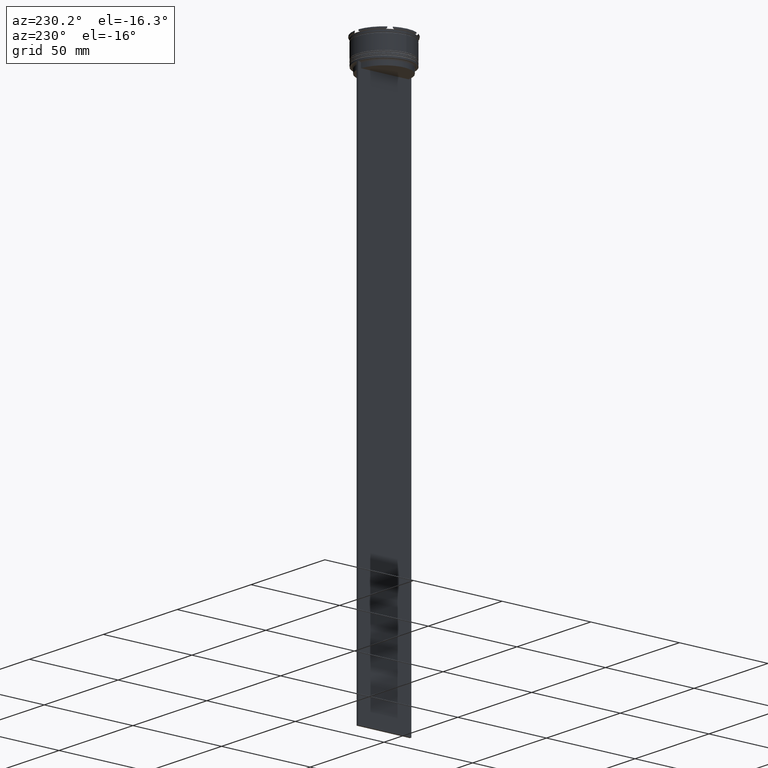
[diagram: clean part render]
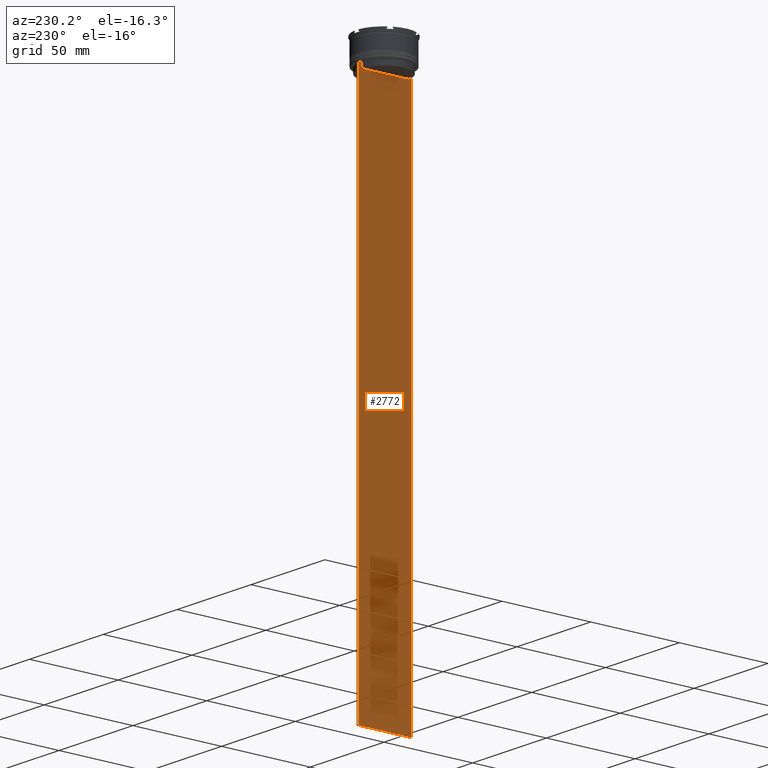
[diagram: same view with one face highlighted and labeled with its STEP entity id]
A machine part, auxiliary view. The second image highlights one B-rep face of the part: STEP entity #2772.
In plain terms, the highlighted planar face has unit normal (-1, 0, 0).
Its self-contained STEP definition (entity closure, byte-faithful):
#4 = FACE_OUTER_BOUND ( 'NONE', #1096, .T. ) ;
#52 = CARTESIAN_POINT ( 'NONE',  ( -0.4999999999999998890, -13.89100428334828230, -14.00000000000000178 ) ) ;
#68 = ORIENTED_EDGE ( 'NONE', *, *, #2498, .F. ) ;
#101 = CARTESIAN_POINT ( 'NONE',  ( -0.4999999999999998890, 14.99999999999999645, -14.00000000000000178 ) ) ;
#151 = DIRECTION ( 'NONE',  ( -0.000000000000000000, -0.000000000000000000, 1.000000000000000000 ) ) ;
#181 = DIRECTION ( 'NONE',  ( 0.000000000000000000, -1.000000000000000000, 0.000000000000000000 ) ) ;
#229 = DIRECTION ( 'NONE',  ( 0.000000000000000000, 0.000000000000000000, 1.000000000000000000 ) ) ;
#246 = CARTESIAN_POINT ( 'NONE',  ( -0.4999999999999998890, 14.89160837518903513, -14.00000000000000178 ) ) ;
#267 = CARTESIAN_POINT ( 'NONE',  ( -0.4999999999999998890, 13.39066839257847263, 0.000000000000000000 ) ) ;
#304 = CARTESIAN_POINT ( 'NONE',  ( -0.4999999999999998890, 14.99999999999999645, -314.0000000000000000 ) ) ;
#312 = VECTOR ( 'NONE', #1860, 1000.000000000000000 ) ;
#320 = CARTESIAN_POINT ( 'NONE',  ( -0.4999999999999998890, 14.99999999999999645, 16.01666203960726165 ) ) ;
#350 = CARTESIAN_POINT ( 'NONE',  ( -0.4999999999999998890, -14.89160837518903513, -14.00000000000000178 ) ) ;
#365 = EDGE_CURVE ( 'NONE', #2777, #2044, #1588, .T. ) ;
#455 = PLANE ( 'NONE',  #1410 ) ;
#680 = EDGE_CURVE ( 'NONE', #2035, #2340, #1081, .T. ) ;
#692 = CARTESIAN_POINT ( 'NONE',  ( -0.4999999999999998890, -15.00000000000000355, -14.00000000000000178 ) ) ;
#708 = VECTOR ( 'NONE', #762, 1000.000000000000000 ) ;
#752 = VERTEX_POINT ( 'NONE', #1847 ) ;
#757 = DIRECTION ( 'NONE',  ( 0.000000000000000000, 0.000000000000000000, -1.000000000000000000 ) ) ;
#762 = DIRECTION ( 'NONE',  ( 0.000000000000000000, -1.000000000000000000, 0.000000000000000000 ) ) ;
#792 = CARTESIAN_POINT ( 'NONE',  ( -0.4999999999999998890, -13.39066839257847263, 0.000000000000000000 ) ) ;
#852 = LINE ( 'NONE', #792, #991 ) ;
#878 = LINE ( 'NONE', #1716, #1408 ) ;
#902 = CARTESIAN_POINT ( 'NONE',  ( -0.4999999999999998890, -15.00000000000000355, -14.00000000000000178 ) ) ;
#991 = VECTOR ( 'NONE', #151, 1000.000000000000000 ) ;
#1005 = CARTESIAN_POINT ( 'NONE',  ( -0.4999999999999998890, -13.39066839257847263, -14.49999999999999822 ) ) ;
#1006 = LINE ( 'NONE', #320, #1121 ) ;
#1015 = ORIENTED_EDGE ( 'NONE', *, *, #2120, .F. ) ;
#1063 = LINE ( 'NONE', #2357, #1680 ) ;
#1081 = LINE ( 'NONE', #902, #2245 ) ;
#1082 = B_SPLINE_CURVE_WITH_KNOTS ( 'NONE', 3,
 ( #1351, #2629, #1761, #2643 ),
 .UNSPECIFIED., .F., .F.,
 ( 4, 4 ),
 ( 0.02359665025569773755, 0.02430399458637444096 ),
 .UNSPECIFIED. ) ;
#1096 = EDGE_LOOP ( 'NONE', ( #1281, #2550, #68, #2881, #1337, #1199, #1814, #2222, #2067, #1886, #1015, #1719 ) ) ;
#1103 = EDGE_CURVE ( 'NONE', #2712, #2745, #2744, .T. ) ;
#1109 = VERTEX_POINT ( 'NONE', #2066 ) ;
#1121 = VECTOR ( 'NONE', #2091, 1000.000000000000000 ) ;
#1149 = DIRECTION ( 'NONE',  ( -1.000000000000000000, 0.000000000000000000, 0.000000000000000000 ) ) ;
#1164 = EDGE_CURVE ( 'NONE', #1812, #752, #1063, .T. ) ;
#1199 = ORIENTED_EDGE ( 'NONE', *, *, #1164, .F. ) ;
#1227 = CARTESIAN_POINT ( 'NONE',  ( -0.4999999999999998890, 13.40000000000000391, -17.00000000000000000 ) ) ;
#1247 = CARTESIAN_POINT ( 'NONE',  ( -0.4999999999999998890, 13.39066839257847263, -14.49999999999999822 ) ) ;
#1258 = DIRECTION ( 'NONE',  ( 0.000000000000000000, 0.000000000000000000, -1.000000000000000000 ) ) ;
#1262 = VECTOR ( 'NONE', #1695, 1000.000000000000000 ) ;
#1281 = ORIENTED_EDGE ( 'NONE', *, *, #2878, .F. ) ;
#1293 = LINE ( 'NONE', #2372, #2121 ) ;
#1337 = ORIENTED_EDGE ( 'NONE', *, *, #1454, .F. ) ;
#1346 = CARTESIAN_POINT ( 'NONE',  ( -0.4999999999999998890, -15.00000000000000355, 16.01666203960726165 ) ) ;
#1351 = CARTESIAN_POINT ( 'NONE',  ( -0.4999999999999998890, 13.89100428334828230, -14.00000000000000178 ) ) ;
#1402 = EDGE_CURVE ( 'NONE', #2340, #1812, #1890, .T. ) ;
#1408 = VECTOR ( 'NONE', #2207, 1000.000000000000000 ) ;
#1410 = AXIS2_PLACEMENT_3D ( 'NONE', #1346, #1149, #229 ) ;
#1430 = VERTEX_POINT ( 'NONE', #101 ) ;
#1454 = EDGE_CURVE ( 'NONE', #752, #2804, #1293, .T. ) ;
#1500 = LINE ( 'NONE', #1227, #1262 ) ;
#1588 = LINE ( 'NONE', #692, #312 ) ;
#1635 = CARTESIAN_POINT ( 'NONE',  ( -0.4999999999999998890, 13.89100428334828230, -14.00000000000000178 ) ) ;
#1680 = VECTOR ( 'NONE', #1258, 1000.000000000000000 ) ;
#1681 = CARTESIAN_POINT ( 'NONE',  ( -0.4999999999999998890, -13.89100428334828230, -14.00000000000000178 ) ) ;
#1695 = DIRECTION ( 'NONE',  ( 0.000000000000000000, -1.000000000000000000, 0.000000000000000000 ) ) ;
#1716 = CARTESIAN_POINT ( 'NONE',  ( -0.4999999999999998890, -15.00000000000000355, -14.00000000000000178 ) ) ;
#1719 = ORIENTED_EDGE ( 'NONE', *, *, #1103, .F. ) ;
#1761 = CARTESIAN_POINT ( 'NONE',  ( -0.4999999999999998890, 13.55744911232272543, -14.33333542444994002 ) ) ;
#1812 = VERTEX_POINT ( 'NONE', #1877 ) ;
#1814 = ORIENTED_EDGE ( 'NONE', *, *, #1402, .F. ) ;
#1836 = B_SPLINE_CURVE_WITH_KNOTS ( 'NONE', 3,
 ( #1005, #2788, #2573, #1681 ),
 .UNSPECIFIED., .F., .F.,
 ( 4, 4 ),
 ( 0.06160226316123729867, 0.06231007364084071437 ),
 .UNSPECIFIED. ) ;
#1847 = CARTESIAN_POINT ( 'NONE',  ( -0.4999999999999998890, -15.00000000000000355, -314.0000000000000000 ) ) ;
#1860 = DIRECTION ( 'NONE',  ( 0.000000000000000000, -1.000000000000000000, 0.000000000000000000 ) ) ;
#1877 = CARTESIAN_POINT ( 'NONE',  ( -0.4999999999999998890, -15.00000000000000355, -14.00000000000000178 ) ) ;
#1886 = ORIENTED_EDGE ( 'NONE', *, *, #2592, .F. ) ;
#1890 = LINE ( 'NONE', #2554, #708 ) ;
#1944 = VECTOR ( 'NONE', #757, 1000.000000000000000 ) ;
#2035 = VERTEX_POINT ( 'NONE', #52 ) ;
#2044 = VERTEX_POINT ( 'NONE', #1635 ) ;
#2066 = CARTESIAN_POINT ( 'NONE',  ( -0.4999999999999998890, -13.39066839257847086, -17.00000000000000000 ) ) ;
#2067 = ORIENTED_EDGE ( 'NONE', *, *, #2136, .F. ) ;
#2091 = DIRECTION ( 'NONE',  ( 0.000000000000000000, 0.000000000000000000, -1.000000000000000000 ) ) ;
#2120 = EDGE_CURVE ( 'NONE', #2745, #1109, #1500, .T. ) ;
#2121 = VECTOR ( 'NONE', #2203, 1000.000000000000000 ) ;
#2136 = EDGE_CURVE ( 'NONE', #2589, #2035, #1836, .T. ) ;
#2203 = DIRECTION ( 'NONE',  ( 0.000000000000000000, 1.000000000000000000, 0.000000000000000000 ) ) ;
#2207 = DIRECTION ( 'NONE',  ( 0.000000000000000000, -1.000000000000000000, 0.000000000000000000 ) ) ;
#2222 = ORIENTED_EDGE ( 'NONE', *, *, #680, .F. ) ;
#2245 = VECTOR ( 'NONE', #181, 1000.000000000000000 ) ;
#2340 = VERTEX_POINT ( 'NONE', #350 ) ;
#2357 = CARTESIAN_POINT ( 'NONE',  ( -0.4999999999999998890, -15.00000000000000355, 16.01666203960726165 ) ) ;
#2372 = CARTESIAN_POINT ( 'NONE',  ( -0.4999999999999998890, -15.00000000000000355, -314.0000000000000000 ) ) ;
#2376 = CARTESIAN_POINT ( 'NONE',  ( -0.4999999999999998890, -13.39066839257847263, -14.49999999999999822 ) ) ;
#2498 = EDGE_CURVE ( 'NONE', #1430, #2777, #878, .T. ) ;
#2536 = EDGE_CURVE ( 'NONE', #1430, #2804, #1006, .T. ) ;
#2550 = ORIENTED_EDGE ( 'NONE', *, *, #365, .F. ) ;
#2554 = CARTESIAN_POINT ( 'NONE',  ( -0.4999999999999998890, -15.00000000000000355, -14.00000000000000178 ) ) ;
#2573 = CARTESIAN_POINT ( 'NONE',  ( -0.4999999999999998890, -13.72422766745777345, -14.16666868242426958 ) ) ;
#2589 = VERTEX_POINT ( 'NONE', #2376 ) ;
#2592 = EDGE_CURVE ( 'NONE', #1109, #2589, #852, .T. ) ;
#2629 = CARTESIAN_POINT ( 'NONE',  ( -0.4999999999999998890, 13.72422766736833566, -14.16666868251365052 ) ) ;
#2643 = CARTESIAN_POINT ( 'NONE',  ( -0.4999999999999998890, 13.39066839257847263, -14.49999999999999822 ) ) ;
#2712 = VERTEX_POINT ( 'NONE', #1247 ) ;
#2744 = LINE ( 'NONE', #267, #1944 ) ;
#2745 = VERTEX_POINT ( 'NONE', #2779 ) ;
#2772 = ADVANCED_FACE ( 'NONE', ( #4 ), #455, .T. ) ;
#2777 = VERTEX_POINT ( 'NONE', #246 ) ;
#2779 = CARTESIAN_POINT ( 'NONE',  ( -0.4999999999999998890, 13.39066839257847086, -17.00000000000000000 ) ) ;
#2788 = CARTESIAN_POINT ( 'NONE',  ( -0.4999999999999998890, -13.55744911241550277, -14.33333542435722485 ) ) ;
#2804 = VERTEX_POINT ( 'NONE', #304 ) ;
#2878 = EDGE_CURVE ( 'NONE', #2044, #2712, #1082, .T. ) ;
#2881 = ORIENTED_EDGE ( 'NONE', *, *, #2536, .T. ) ;